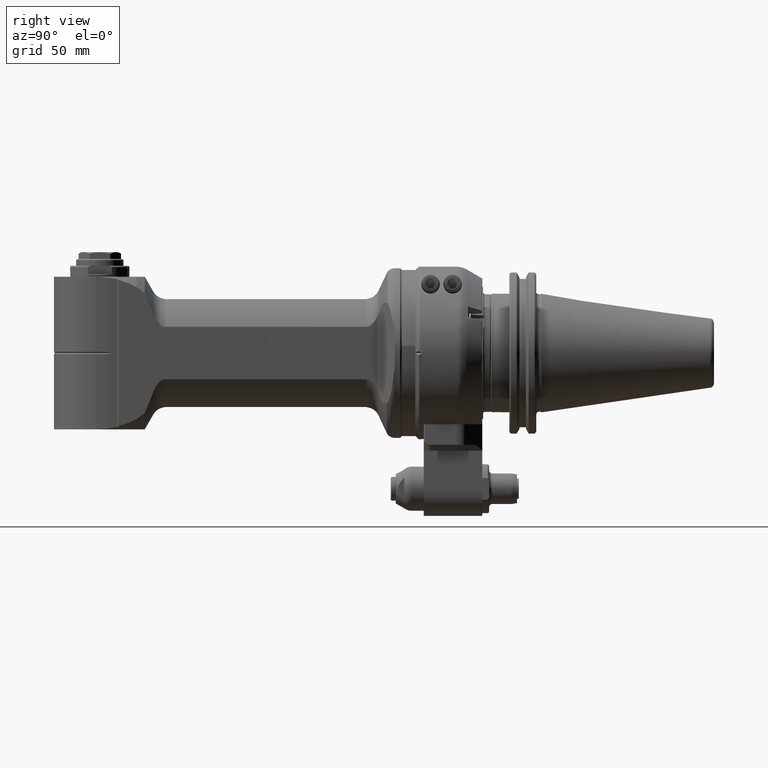
[diagram: clean part render]
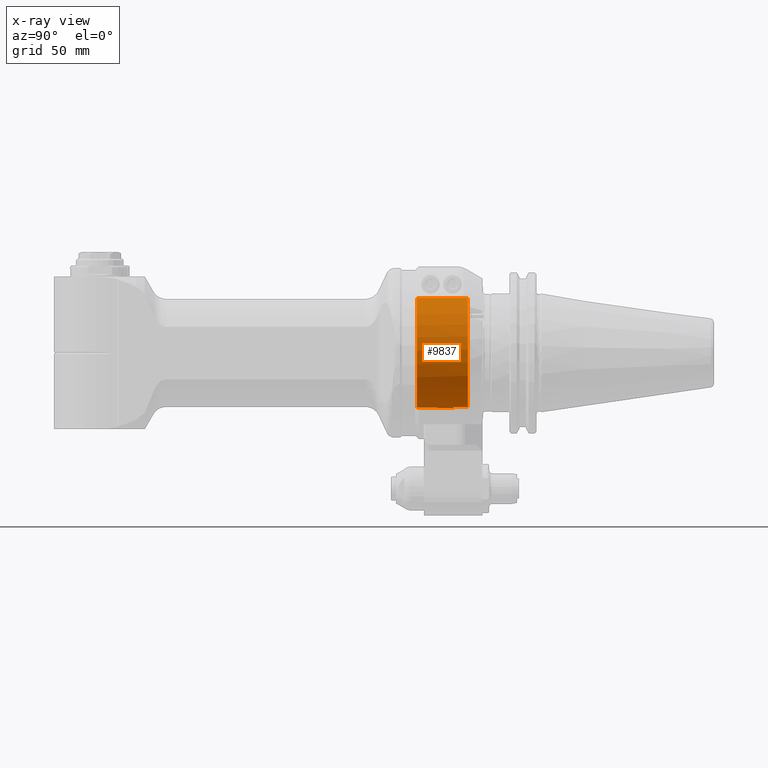
[diagram: x-ray — body ghosted, one internal face saturated and labeled with its STEP entity id]
A machine part, right view, then the same camera in x-ray: the body is ghosted and one INTERNAL B-rep face — a face not visible from any outside direction — is saturated and labeled: STEP entity #9837.
In plain terms, the highlighted cylindrical surface (partial cylindrical patch) has radius 32.5 mm, axis along (0, -1, 0).
Its self-contained STEP definition (entity closure, byte-faithful):
#691=CYLINDRICAL_SURFACE('',#10840,32.5);
#1018=CIRCLE('',#10791,32.5);
#1040=CIRCLE('',#10841,32.5);
#1041=CIRCLE('',#10842,32.5);
#1042=CIRCLE('',#10843,32.5);
#1599=FACE_OUTER_BOUND('',#2236,.T.);
#2236=EDGE_LOOP('',(#7674,#7675,#7676,#7677,#7678,#7679,#7680,#7681));
#2891=LINE('',#17668,#3550);
#2892=LINE('',#17671,#3551);
#2893=LINE('',#17675,#3552);
#2894=LINE('',#17679,#3553);
#3550=VECTOR('',#12871,8.5);
#3551=VECTOR('',#12874,8.5);
#3552=VECTOR('',#12877,30.);
#3553=VECTOR('',#12880,29.99999999998);
#4347=VERTEX_POINT('',#16779);
#4348=VERTEX_POINT('',#16781);
#4386=VERTEX_POINT('',#17666);
#4387=VERTEX_POINT('',#17670);
#4388=VERTEX_POINT('',#17672);
#4389=VERTEX_POINT('',#17674);
#4390=VERTEX_POINT('',#17676);
#4391=VERTEX_POINT('',#17678);
#5501=EDGE_CURVE('',#4348,#4347,#1018,.T.);
#5571=EDGE_CURVE('',#4347,#4386,#2891,.T.);
#5572=EDGE_CURVE('',#4348,#4387,#2892,.T.);
#5573=EDGE_CURVE('',#4388,#4386,#1040,.T.);
#5574=EDGE_CURVE('',#4388,#4389,#2893,.T.);
#5575=EDGE_CURVE('',#4390,#4389,#1041,.T.);
#5576=EDGE_CURVE('',#4390,#4391,#2894,.T.);
#5577=EDGE_CURVE('',#4387,#4391,#1042,.T.);
#7674=ORIENTED_EDGE('',*,*,#5572,.F.);
#7675=ORIENTED_EDGE('',*,*,#5501,.T.);
#7676=ORIENTED_EDGE('',*,*,#5571,.T.);
#7677=ORIENTED_EDGE('',*,*,#5573,.F.);
#7678=ORIENTED_EDGE('',*,*,#5574,.T.);
#7679=ORIENTED_EDGE('',*,*,#5575,.F.);
#7680=ORIENTED_EDGE('',*,*,#5576,.T.);
#7681=ORIENTED_EDGE('',*,*,#5577,.F.);
#9837=ADVANCED_FACE('',(#1599),#691,.F.);
#10791=AXIS2_PLACEMENT_3D('',#16782,#12740,#12741);
#10840=AXIS2_PLACEMENT_3D('',#17669,#12872,#12873);
#10841=AXIS2_PLACEMENT_3D('',#17673,#12875,#12876);
#10842=AXIS2_PLACEMENT_3D('',#17677,#12878,#12879);
#10843=AXIS2_PLACEMENT_3D('',#17680,#12881,#12882);
#12740=DIRECTION('center_axis',(0.,1.,0.));
#12741=DIRECTION('ref_axis',(0.164179104477598,0.,-0.986430545782588));
#12871=DIRECTION('',(0.,1.,0.));
#12872=DIRECTION('center_axis',(0.,-1.,0.));
#12873=DIRECTION('ref_axis',(1.38678298153134E-13,0.,-1.));
#12874=DIRECTION('',(0.,1.,0.));
#12875=DIRECTION('center_axis',(0.,-1.,0.));
#12876=DIRECTION('ref_axis',(-0.0461538461538519,0.,0.998934343430642));
#12877=DIRECTION('',(0.,-1.,0.));
#12878=DIRECTION('center_axis',(0.,1.,0.));
#12879=DIRECTION('ref_axis',(0.,0.,-1.));
#12880=DIRECTION('',(3.148370453234E-13,1.,-1.421085471521E-14));
#12881=DIRECTION('center_axis',(0.,-1.,0.));
#12882=DIRECTION('ref_axis',(0.164179104477598,0.,-0.986430545782588));
#16779=CARTESIAN_POINT('',(-5.335820895522,22.5,-32.05899273793));
#16781=CARTESIAN_POINT('',(5.335820895522,22.5,-32.05899273793));
#16782=CARTESIAN_POINT('Origin',(0.,22.5,0.));
#17666=CARTESIAN_POINT('',(-5.335820895522,31.,-32.05899273793));
#17668=CARTESIAN_POINT('',(-5.335820895522,22.5,-32.05899273793));
#17669=CARTESIAN_POINT('Origin',(0.,16.5,0.));
#17670=CARTESIAN_POINT('',(5.335820895522,31.,-32.05899273793));
#17671=CARTESIAN_POINT('',(5.335820895522,22.5,-32.05899273793));
#17672=CARTESIAN_POINT('',(-1.5,31.,32.4653661615));
#17673=CARTESIAN_POINT('Origin',(0.,31.,0.));
#17674=CARTESIAN_POINT('',(-1.5,1.,32.4653661615));
#17675=CARTESIAN_POINT('',(-1.5,31.,32.4653661615));
#17676=CARTESIAN_POINT('',(1.499999999991,1.000000000023,32.4653661615));
#17677=CARTESIAN_POINT('Origin',(0.,0.9999999999999,0.));
#17678=CARTESIAN_POINT('',(1.5,31.,32.4653661615));
#17679=CARTESIAN_POINT('',(1.499999999991,1.000000000023,32.4653661615));
#17680=CARTESIAN_POINT('Origin',(0.,31.,0.));